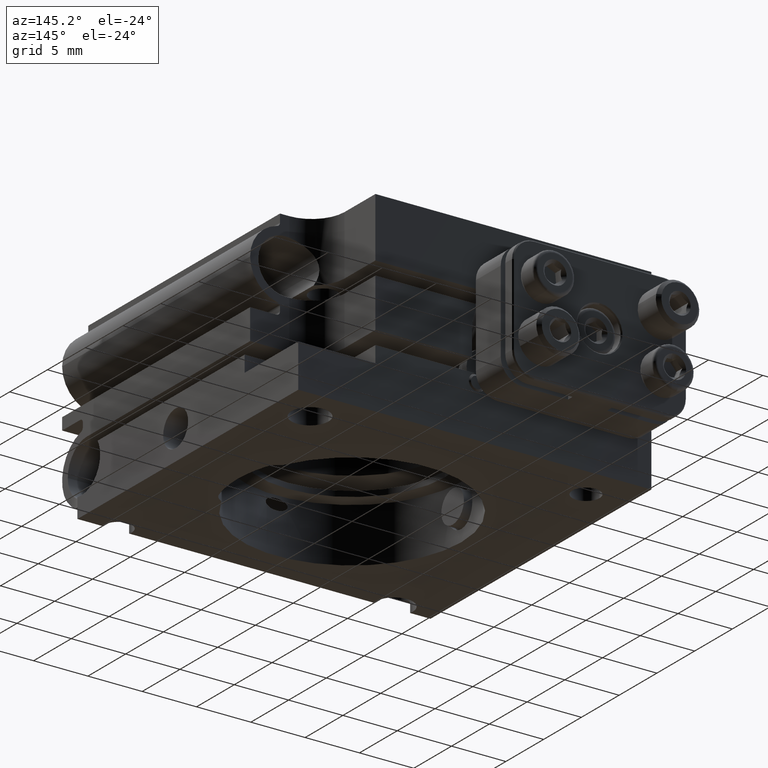
[diagram: clean part render]
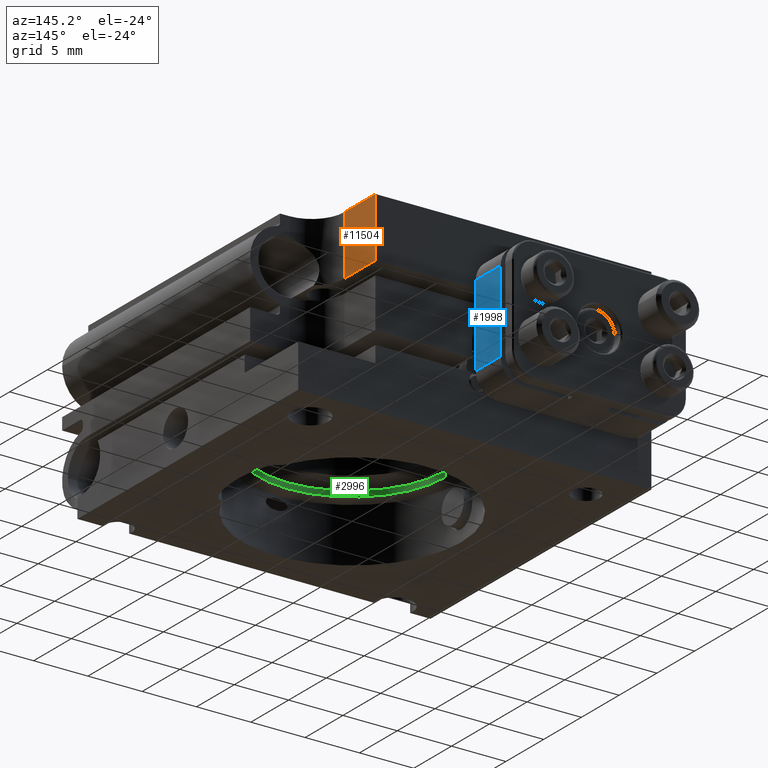
[diagram: same view with three faces highlighted in distinct colors, each labeled with its STEP entity id]
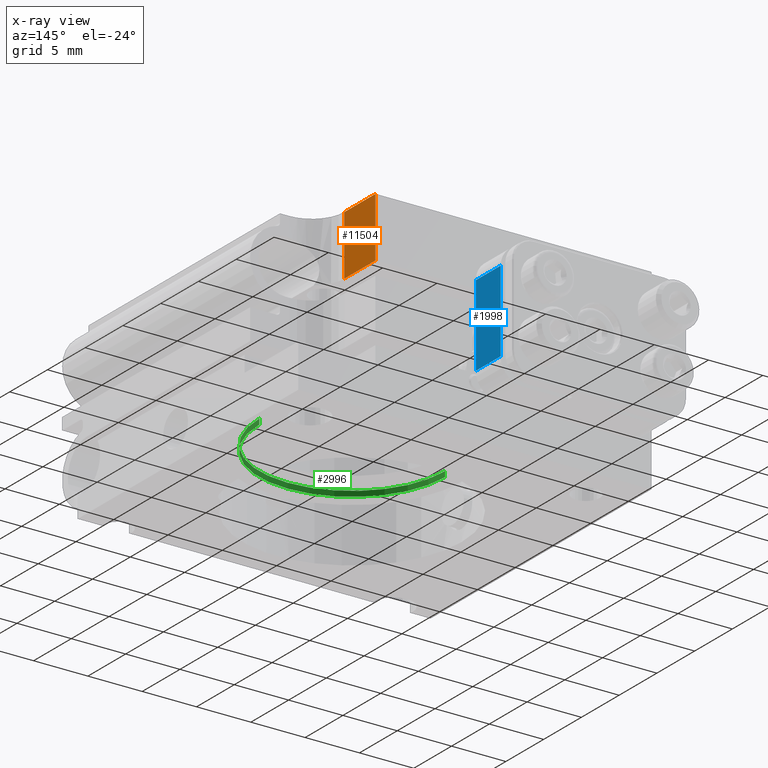
[diagram: x-ray of the same camera — body ghosted, the three highlighted faces saturated]
A machine part, auxiliary view with three faces highlighted in distinct colors.
The next image is the same camera in x-ray (body ghosted, the three faces saturated) — at least one of them is partly hidden behind the body in this view.
Their STEP definitions:

[orange] entity #11504 — the highlighted planar face has unit normal (-1, 0, -0).
#448 = CARTESIAN_POINT ( 'NONE',  ( -16.25000000000000355, -15.04091629284897813, -9.150000000000005684 ) ) ;
#455 = EDGE_CURVE ( 'NONE', #11484, #6198, #588, .T. ) ;
#571 = EDGE_CURVE ( 'NONE', #2754, #11510, #11568, .T. ) ;
#588 = LINE ( 'NONE', #660, #9129 ) ;
#660 = CARTESIAN_POINT ( 'NONE',  ( -12.15000000000002522, 9.000000000000000000, -9.150000000000005684 ) ) ;
#1467 = LINE ( 'NONE', #448, #7494 ) ;
#1480 = ORIENTED_EDGE ( 'NONE', *, *, #571, .F. ) ;
#2263 = CARTESIAN_POINT ( 'NONE',  ( -12.15000000000002522, -15.04091629284897813, -9.150000000000005684 ) ) ;
#2754 = VERTEX_POINT ( 'NONE', #7308 ) ;
#3352 = VECTOR ( 'NONE', #3630, 1000.000000000000000 ) ;
#3539 = FACE_OUTER_BOUND ( 'NONE', #6313, .T. ) ;
#3630 = DIRECTION ( 'NONE',  ( 1.000000000000000000, 0.000000000000000000, -0.000000000000000000 ) ) ;
#4777 = DIRECTION ( 'NONE',  ( 1.000000000000000000, -0.000000000000000000, -0.000000000000000000 ) ) ;
#4917 = ORIENTED_EDGE ( 'NONE', *, *, #9164, .T. ) ;
#4937 = ORIENTED_EDGE ( 'NONE', *, *, #455, .T. ) ;
#5484 = CARTESIAN_POINT ( 'NONE',  ( -12.15000000000002522, 9.000000000000000000, -9.150000000000005684 ) ) ;
#5616 = CARTESIAN_POINT ( 'NONE',  ( -12.15000000000002522, -15.04091629284897813, -9.150000000000005684 ) ) ;
#5745 = DIRECTION ( 'NONE',  ( 0.000000000000000000, 0.000000000000000000, 1.000000000000000000 ) ) ;
#6198 = VERTEX_POINT ( 'NONE', #5484 ) ;
#6300 = DIRECTION ( 'NONE',  ( -0.000000000000000000, 1.000000000000000000, -0.000000000000000000 ) ) ;
#6313 = EDGE_LOOP ( 'NONE', ( #4917, #4937, #12523, #1480 ) ) ;
#6626 = VECTOR ( 'NONE', #6300, 1000.000000000000000 ) ;
#6637 = DIRECTION ( 'NONE',  ( -0.000000000000000000, 1.000000000000000000, -0.000000000000000000 ) ) ;
#7308 = CARTESIAN_POINT ( 'NONE',  ( -16.25000000000000355, 3.499999999999991118, -9.150000000000005684 ) ) ;
#7494 = VECTOR ( 'NONE', #6637, 1000.000000000000000 ) ;
#7586 = CARTESIAN_POINT ( 'NONE',  ( 16.24999999999999645, 3.499999999999998668, -9.150000000000005684 ) ) ;
#7629 = CARTESIAN_POINT ( 'NONE',  ( -16.25000000000000355, 9.000000000000000000, -9.150000000000005684 ) ) ;
#7756 = PLANE ( 'NONE',  #11667 ) ;
#7820 = CARTESIAN_POINT ( 'NONE',  ( -12.15000000000002522, 3.499999999999991118, -9.150000000000005684 ) ) ;
#8064 = EDGE_CURVE ( 'NONE', #11510, #6198, #12847, .T. ) ;
#9129 = VECTOR ( 'NONE', #4777, 1000.000000000000000 ) ;
#9164 = EDGE_CURVE ( 'NONE', #2754, #11484, #1467, .T. ) ;
#9851 = DIRECTION ( 'NONE',  ( 1.000000000000000000, 0.000000000000000000, -0.000000000000000000 ) ) ;
#11484 = VERTEX_POINT ( 'NONE', #7629 ) ;
#11504 = ADVANCED_FACE ( 'NONE', ( #3539 ), #7756, .F. ) ;
#11510 = VERTEX_POINT ( 'NONE', #7820 ) ;
#11568 = LINE ( 'NONE', #7586, #3352 ) ;
#11667 = AXIS2_PLACEMENT_3D ( 'NONE', #5616, #5745, #9851 ) ;
#12523 = ORIENTED_EDGE ( 'NONE', *, *, #8064, .F. ) ;
#12847 = LINE ( 'NONE', #2263, #6626 ) ;

[blue] entity #1998 — the highlighted planar face has unit normal (-1, 0, 0).
#145 = CARTESIAN_POINT ( 'NONE',  ( 8.000000000000000000, 0.1000000000000011297, -3.749999999999999556 ) ) ;
#564 = DIRECTION ( 'NONE',  ( 3.016910393003142859E-16, 3.159487401173768784E-32, 1.000000000000000000 ) ) ;
#601 = ORIENTED_EDGE ( 'NONE', *, *, #10148, .T. ) ;
#856 = AXIS2_PLACEMENT_3D ( 'NONE', #12248, #11980, #2773 ) ;
#1998 = ADVANCED_FACE ( 'NONE', ( #9149 ), #13254, .F. ) ;
#2344 = ORIENTED_EDGE ( 'NONE', *, *, #5369, .T. ) ;
#2526 = LINE ( 'NONE', #6621, #6128 ) ;
#2531 = LINE ( 'NONE', #8910, #4739 ) ;
#2773 = DIRECTION ( 'NONE',  ( 3.016910393003142859E-16, 0.000000000000000000, 1.000000000000000000 ) ) ;
#2876 = CARTESIAN_POINT ( 'NONE',  ( 8.000000000000000000, 3.400000000000002132, -5.749999999999999112 ) ) ;
#2977 = CARTESIAN_POINT ( 'NONE',  ( 8.000000000000000000, 3.400000000000002132, -3.749999999999999556 ) ) ;
#3162 = VECTOR ( 'NONE', #564, 1000.000000000000000 ) ;
#3696 = ORIENTED_EDGE ( 'NONE', *, *, #8920, .T. ) ;
#4113 = VERTEX_POINT ( 'NONE', #11306 ) ;
#4329 = CARTESIAN_POINT ( 'NONE',  ( 8.000000000000003553, 3.400000000000002132, 3.750000000000000000 ) ) ;
#4739 = VECTOR ( 'NONE', #10666, 1000.000000000000000 ) ;
#5369 = EDGE_CURVE ( 'NONE', #7568, #7052, #9796, .T. ) ;
#6128 = VECTOR ( 'NONE', #10714, 1000.000000000000000 ) ;
#6621 = CARTESIAN_POINT ( 'NONE',  ( 8.000000000000000000, 0.1000000000000011297, -5.749999999999999112 ) ) ;
#7052 = VERTEX_POINT ( 'NONE', #4329 ) ;
#7568 = VERTEX_POINT ( 'NONE', #2977 ) ;
#7844 = ORIENTED_EDGE ( 'NONE', *, *, #13225, .T. ) ;
#8910 = CARTESIAN_POINT ( 'NONE',  ( 8.000000000000000000, 5.000000000000000000, -3.749999999999999556 ) ) ;
#8920 = EDGE_CURVE ( 'NONE', #7052, #4113, #9150, .T. ) ;
#9149 = FACE_OUTER_BOUND ( 'NONE', #12405, .T. ) ;
#9150 = LINE ( 'NONE', #10178, #10936 ) ;
#9796 = LINE ( 'NONE', #2876, #3162 ) ;
#10047 = DIRECTION ( 'NONE',  ( 0.000000000000000000, -1.000000000000000000, 0.000000000000000000 ) ) ;
#10148 = EDGE_CURVE ( 'NONE', #12162, #7568, #2531, .T. ) ;
#10178 = CARTESIAN_POINT ( 'NONE',  ( 8.000000000000003553, 5.000000000000000000, 3.749999999999999112 ) ) ;
#10666 = DIRECTION ( 'NONE',  ( -0.000000000000000000, 1.000000000000000000, -0.000000000000000000 ) ) ;
#10714 = DIRECTION ( 'NONE',  ( -3.016910393003142859E-16, 0.000000000000000000, -1.000000000000000000 ) ) ;
#10936 = VECTOR ( 'NONE', #10047, 1000.000000000000000 ) ;
#11306 = CARTESIAN_POINT ( 'NONE',  ( 8.000000000000003553, 0.1000000000000011297, 3.749999999999999112 ) ) ;
#11980 = DIRECTION ( 'NONE',  ( -1.000000000000000000, 0.000000000000000000, 3.016910393003142859E-16 ) ) ;
#12162 = VERTEX_POINT ( 'NONE', #145 ) ;
#12248 = CARTESIAN_POINT ( 'NONE',  ( 8.000000000000000000, 5.000000000000000000, -5.749999999999999112 ) ) ;
#12405 = EDGE_LOOP ( 'NONE', ( #3696, #7844, #601, #2344 ) ) ;
#13225 = EDGE_CURVE ( 'NONE', #4113, #12162, #2526, .T. ) ;
#13254 = PLANE ( 'NONE',  #856 ) ;

[green] entity #2996 — the highlighted cylindrical surface (partial cylindrical patch) has radius 8.55 mm, axis along (-0, 0, 1).
#242 = CARTESIAN_POINT ( 'NONE',  ( 0.000000000000000000, -3.999999999999999112, 8.549999999999998934 ) ) ;
#307 = VECTOR ( 'NONE', #8815, 1000.000000000000000 ) ;
#591 = LINE ( 'NONE', #4710, #307 ) ;
#1658 = LINE ( 'NONE', #8931, #11453 ) ;
#1977 = CARTESIAN_POINT ( 'NONE',  ( 0.000000000000000000, -8.999999999999998224, 0.000000000000000000 ) ) ;
#2006 = AXIS2_PLACEMENT_3D ( 'NONE', #1977, #8158, #4077 ) ;
#2235 = VERTEX_POINT ( 'NONE', #3585 ) ;
#2996 = ADVANCED_FACE ( 'NONE', ( #5085 ), #12136, .F. ) ;
#3585 = CARTESIAN_POINT ( 'NONE',  ( 1.047073013270986818E-15, -3.999999999999999112, -8.549999999999998934 ) ) ;
#4003 = EDGE_CURVE ( 'NONE', #12978, #5896, #1658, .T. ) ;
#4077 = DIRECTION ( 'NONE',  ( 0.000000000000000000, 0.000000000000000000, 1.000000000000000000 ) ) ;
#4710 = CARTESIAN_POINT ( 'NONE',  ( 1.047073013270986818E-15, -8.999999999999998224, -8.549999999999998934 ) ) ;
#4856 = CARTESIAN_POINT ( 'NONE',  ( 1.047073013270986818E-15, -3.499999999999999556, -8.549999999999998934 ) ) ;
#4870 = CARTESIAN_POINT ( 'NONE',  ( 0.000000000000000000, -3.499999999999999556, 0.000000000000000000 ) ) ;
#5085 = FACE_OUTER_BOUND ( 'NONE', #8334, .T. ) ;
#5375 = AXIS2_PLACEMENT_3D ( 'NONE', #4870, #7872, #8962 ) ;
#5660 = DIRECTION ( 'NONE',  ( -0.000000000000000000, 1.000000000000000000, -0.000000000000000000 ) ) ;
#5896 = VERTEX_POINT ( 'NONE', #8809 ) ;
#6895 = EDGE_CURVE ( 'NONE', #8460, #5896, #10324, .T. ) ;
#7013 = ORIENTED_EDGE ( 'NONE', *, *, #4003, .T. ) ;
#7646 = ORIENTED_EDGE ( 'NONE', *, *, #11924, .F. ) ;
#7872 = DIRECTION ( 'NONE',  ( 0.000000000000000000, -1.000000000000000000, 0.000000000000000000 ) ) ;
#8158 = DIRECTION ( 'NONE',  ( -0.000000000000000000, 1.000000000000000000, -0.000000000000000000 ) ) ;
#8334 = EDGE_LOOP ( 'NONE', ( #11939, #7646, #7013, #12596 ) ) ;
#8460 = VERTEX_POINT ( 'NONE', #4856 ) ;
#8809 = CARTESIAN_POINT ( 'NONE',  ( 0.000000000000000000, -3.499999999999999556, 8.549999999999998934 ) ) ;
#8815 = DIRECTION ( 'NONE',  ( -0.000000000000000000, 1.000000000000000000, -0.000000000000000000 ) ) ;
#8931 = CARTESIAN_POINT ( 'NONE',  ( 0.000000000000000000, -8.999999999999998224, 8.549999999999998934 ) ) ;
#8962 = DIRECTION ( 'NONE',  ( 0.000000000000000000, 0.000000000000000000, -1.000000000000000000 ) ) ;
#9639 = CARTESIAN_POINT ( 'NONE',  ( 0.000000000000000000, -3.999999999999999112, 0.000000000000000000 ) ) ;
#9775 = DIRECTION ( 'NONE',  ( 0.000000000000000000, 0.000000000000000000, -1.000000000000000000 ) ) ;
#10181 = AXIS2_PLACEMENT_3D ( 'NONE', #9639, #5660, #9775 ) ;
#10324 = CIRCLE ( 'NONE', #5375, 8.549999999999998934 ) ;
#10396 = CIRCLE ( 'NONE', #10181, 8.549999999999998934 ) ;
#11453 = VECTOR ( 'NONE', #13022, 1000.000000000000000 ) ;
#11924 = EDGE_CURVE ( 'NONE', #12978, #2235, #10396, .T. ) ;
#11939 = ORIENTED_EDGE ( 'NONE', *, *, #12453, .F. ) ;
#12136 = CYLINDRICAL_SURFACE ( 'NONE', #2006, 8.549999999999998934 ) ;
#12453 = EDGE_CURVE ( 'NONE', #2235, #8460, #591, .T. ) ;
#12596 = ORIENTED_EDGE ( 'NONE', *, *, #6895, .F. ) ;
#12978 = VERTEX_POINT ( 'NONE', #242 ) ;
#13022 = DIRECTION ( 'NONE',  ( -0.000000000000000000, 1.000000000000000000, -0.000000000000000000 ) ) ;